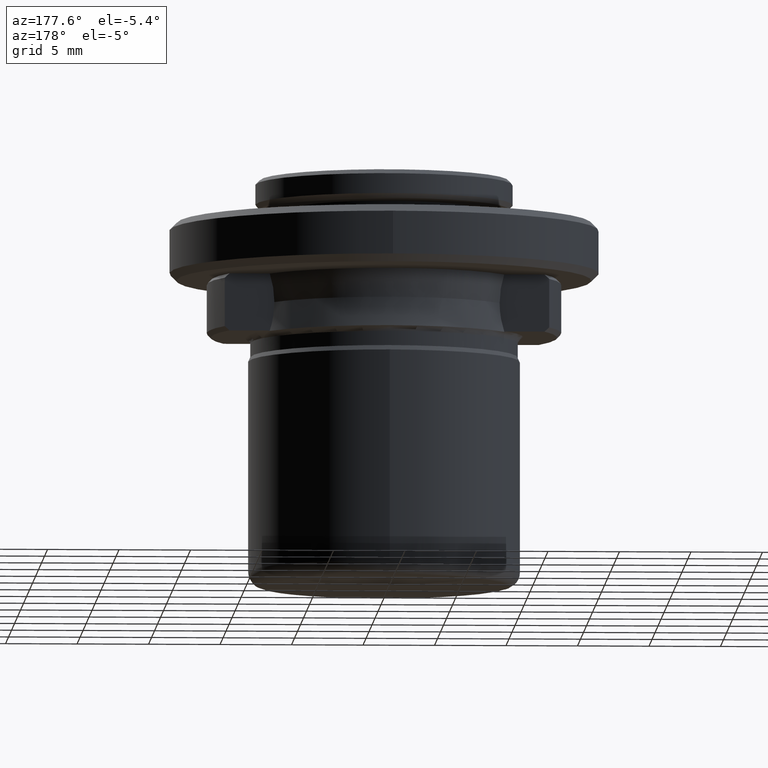
[diagram: clean part render]
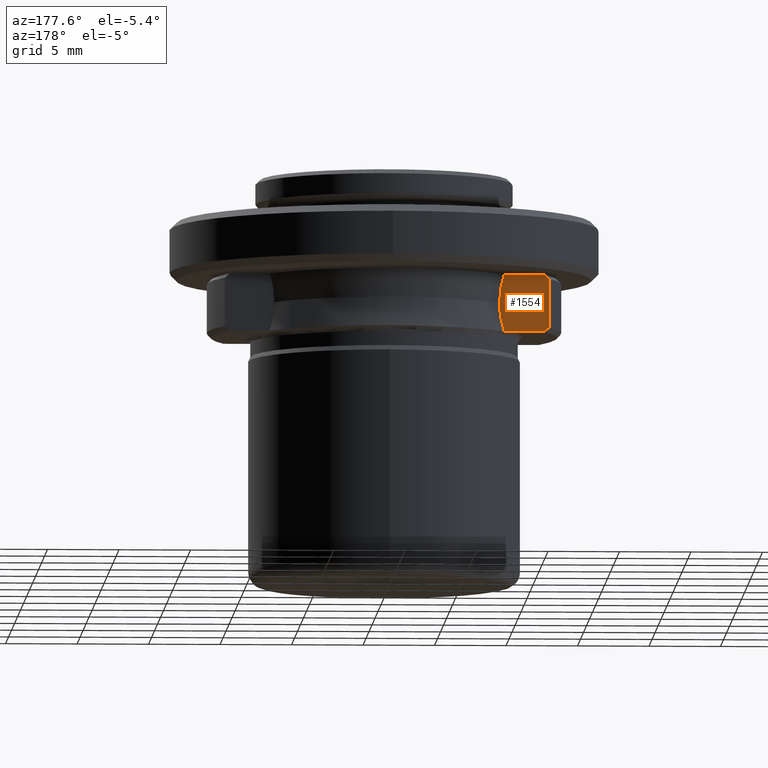
[diagram: same view with one face highlighted and labeled with its STEP entity id]
A machine part, auxiliary view. The second image highlights one B-rep face of the part: STEP entity #1554.
In plain terms, the highlighted planar face has unit normal (0, -1, 0).
Its self-contained STEP definition (entity closure, byte-faithful):
#1 = VERTEX_POINT ( 'NONE', #232 ) ;
#32 = CARTESIAN_POINT ( 'NONE',  ( -7.987554438100409500, 5.000000000000000000, 8.103832765032985100 ) ) ;
#40 = CARTESIAN_POINT ( 'NONE',  ( -8.370334521211765000, 4.999999999999999100, 4.749999999889213100 ) ) ;
#67 = CARTESIAN_POINT ( 'NONE',  ( -11.34724636062125900, 5.000000002381489700, 5.049999999695453200 ) ) ;
#115 = DIRECTION ( 'NONE',  ( -1.000000000000000000, -0.0000000000000000000, -0.0000000000000000000 ) ) ;
#120 = CARTESIAN_POINT ( 'NONE',  ( -11.34724635990468900, 5.000000004762981100, 6.750000000000000900 ) ) ;
#171 = CARTESIAN_POINT ( 'NONE',  ( -7.877112416672511100, 4.999999997048597300, 6.749999999319589600 ) ) ;
#215 = CARTESIAN_POINT ( 'NONE',  ( 0.0000000000000000000, 5.000000006628000400, 8.750000000000000000 ) ) ;
#224 = VERTEX_POINT ( 'NONE', #255 ) ;
#226 = CARTESIAN_POINT ( 'NONE',  ( -11.23782482277525400, 5.000000000000000000, 8.550131706688427300 ) ) ;
#232 = CARTESIAN_POINT ( 'NONE',  ( -8.205382973227298000, 5.000000000000000900, 4.724235039559845400 ) ) ;
#234 = ORIENTED_EDGE ( 'NONE', *, *, #259, .T. ) ;
#236 = EDGE_CURVE ( 'NONE', #486, #224, #714, .T. ) ;
#241 = ORIENTED_EDGE ( 'NONE', *, *, #774, .F. ) ;
#252 = EDGE_CURVE ( 'NONE', #605, #224, #1472, .T. ) ;
#255 = CARTESIAN_POINT ( 'NONE',  ( -11.01862060325745700, 4.999999999999999100, 4.749999999939245900 ) ) ;
#259 = EDGE_CURVE ( 'NONE', #810, #1780, #1401, .T. ) ;
#321 = CARTESIAN_POINT ( 'NONE',  ( -7.877112416672511100, 4.999999997048597300, 6.749999999319589600 ) ) ;
#325 = CARTESIAN_POINT ( 'NONE',  ( -7.877112416672511100, 4.999999997048597300, 6.749999999319589600 ) ) ;
#358 = VERTEX_POINT ( 'NONE', #1141 ) ;
#377 = EDGE_CURVE ( 'NONE', #1780, #420, #1736, .T. ) ;
#420 = VERTEX_POINT ( 'NONE', #325 ) ;
#445 = EDGE_CURVE ( 'NONE', #486, #1, #661, .T. ) ;
#448 = CARTESIAN_POINT ( 'NONE',  ( -8.196975812969103700, 5.000000000442648600, 8.750000000509832200 ) ) ;
#453 = CARTESIAN_POINT ( 'NONE',  ( -8.314009201291112200, 5.000000001154024400, 4.749999998633676900 ) ) ;
#470 = ORIENTED_EDGE ( 'NONE', *, *, #252, .F. ) ;
#486 = VERTEX_POINT ( 'NONE', #40 ) ;
#581 = EDGE_CURVE ( 'NONE', #605, #358, #939, .T. ) ;
#598 = ORIENTED_EDGE ( 'NONE', *, *, #377, .T. ) ;
#605 = VERTEX_POINT ( 'NONE', #67 ) ;
#647 = CARTESIAN_POINT ( 'NONE',  ( -11.34724636062125900, 5.000000002381489700, 5.049999999695453200 ) ) ;
#652 = CARTESIAN_POINT ( 'NONE',  ( -11.01862060325745700, 4.999999999999999100, 4.749999999939245900 ) ) ;
#661 = B_SPLINE_CURVE_WITH_KNOTS ( 'NONE', 3,
 ( #1035, #453, #750, #1687 ),
 .UNSPECIFIED., .F., .F.,
 ( 4, 4 ),
 ( 0.0000000000000000000, 0.0001669516244480452800 ),
 .UNSPECIFIED. ) ;
#705 = PLANE ( 'NONE',  #1546 ) ;
#714 = LINE ( 'NONE', #1368, #1089 ) ;
#750 = CARTESIAN_POINT ( 'NONE',  ( -8.259008784567335200, 5.000000000000000000, 4.741517755171558200 ) ) ;
#774 = EDGE_CURVE ( 'NONE', #810, #358, #1058, .T. ) ;
#810 = VERTEX_POINT ( 'NONE', #1075 ) ;
#840 = ORIENTED_EDGE ( 'NONE', *, *, #581, .T. ) ;
#845 = DIRECTION ( 'NONE',  ( 0.0000000000000000000, 0.0000000000000000000, -1.000000000000000000 ) ) ;
#887 = CARTESIAN_POINT ( 'NONE',  ( -8.205382973227298000, 5.000000000000000900, 4.724235039559845400 ) ) ;
#906 = VECTOR ( 'NONE', #1099, 1000.000000000000000 ) ;
#927 = DIRECTION ( 'NONE',  ( 1.000000000000000000, 0.0000000000000000000, 0.0000000000000000000 ) ) ;
#939 = LINE ( 'NONE', #120, #906 ) ;
#961 = CARTESIAN_POINT ( 'NONE',  ( -11.34724636200000000, 5.000000000000000000, 8.750000000000000000 ) ) ;
#1017 = CARTESIAN_POINT ( 'NONE',  ( -7.877112415001547200, 5.000000000000000000, 7.429352586293858500 ) ) ;
#1035 = CARTESIAN_POINT ( 'NONE',  ( -8.370334521211765000, 4.999999999999999100, 4.749999999889213100 ) ) ;
#1057 = ORIENTED_EDGE ( 'NONE', *, *, #236, .T. ) ;
#1058 = B_SPLINE_CURVE_WITH_KNOTS ( 'NONE', 3,
 ( #1738, #1073, #226, #1193 ),
 .UNSPECIFIED., .F., .F.,
 ( 4, 4 ),
 ( 0.0000000000000000000, 0.0004449661644516557200 ),
 .UNSPECIFIED. ) ;
#1073 = CARTESIAN_POINT ( 'NONE',  ( -11.12828599798885600, 5.000000000000000000, 8.650135423376600100 ) ) ;
#1075 = CARTESIAN_POINT ( 'NONE',  ( -11.01862060233275300, 5.000000003314000600, 8.749999999533397200 ) ) ;
#1089 = VECTOR ( 'NONE', #115, 1000.000000000000000 ) ;
#1091 = EDGE_LOOP ( 'NONE', ( #234, #598, #1309, #1237, #1057, #470, #840, #241 ) ) ;
#1099 = DIRECTION ( 'NONE',  ( 0.0000000000000000000, 0.0000000000000000000, 1.000000000000000000 ) ) ;
#1103 = DIRECTION ( 'NONE',  ( 0.0000000000000000000, -1.000000000000000000, 0.0000000000000000000 ) ) ;
#1141 = CARTESIAN_POINT ( 'NONE',  ( -11.34724636108874700, 5.000000002381489700, 8.449999999876746800 ) ) ;
#1151 = CARTESIAN_POINT ( 'NONE',  ( -7.877112415290540100, 5.000000000000000000, 6.061556053650237500 ) ) ;
#1193 = CARTESIAN_POINT ( 'NONE',  ( -11.34724636108874700, 5.000000002381489700, 8.449999999876746800 ) ) ;
#1237 = ORIENTED_EDGE ( 'NONE', *, *, #445, .F. ) ;
#1309 = ORIENTED_EDGE ( 'NONE', *, *, #1772, .F. ) ;
#1368 = CARTESIAN_POINT ( 'NONE',  ( -10.23516726099999900, 5.000000000000000000, 4.750000000000000000 ) ) ;
#1401 = LINE ( 'NONE', #215, #1719 ) ;
#1416 = B_SPLINE_CURVE_WITH_KNOTS ( 'NONE', 3,
 ( #887, #1423, #1151, #321 ),
 .UNSPECIFIED., .F., .F.,
 ( 4, 4 ),
 ( 1.213076539937994500E-013, 0.002059031618340729500 ),
 .UNSPECIFIED. ) ;
#1423 = CARTESIAN_POINT ( 'NONE',  ( -7.990552239294795600, 4.999999999999997300, 5.378193889154550400 ) ) ;
#1429 = CARTESIAN_POINT ( 'NONE',  ( -8.196975812969103700, 5.000000000442648600, 8.750000000509832200 ) ) ;
#1458 = CARTESIAN_POINT ( 'NONE',  ( -11.23782482176562400, 5.000000000000000000, 4.949868292389001400 ) ) ;
#1466 = CARTESIAN_POINT ( 'NONE',  ( -11.12828599690503000, 5.000000000000000000, 4.849864575634641500 ) ) ;
#1472 = B_SPLINE_CURVE_WITH_KNOTS ( 'NONE', 3,
 ( #647, #1458, #1466, #652 ),
 .UNSPECIFIED., .F., .F.,
 ( 4, 4 ),
 ( 3.238883885890238900E-013, 0.0004449661656181250400 ),
 .UNSPECIFIED. ) ;
#1546 = AXIS2_PLACEMENT_3D ( 'NONE', #961, #1103, #845 ) ;
#1554 = ADVANCED_FACE ( 'NONE', ( #1645 ), #705, .F. ) ;
#1645 = FACE_OUTER_BOUND ( 'NONE', #1091, .T. ) ;
#1687 = CARTESIAN_POINT ( 'NONE',  ( -8.205382973227298000, 5.000000000000000900, 4.724235039559845400 ) ) ;
#1719 = VECTOR ( 'NONE', #927, 1000.000000000000000 ) ;
#1736 = B_SPLINE_CURVE_WITH_KNOTS ( 'NONE', 3,
 ( #448, #32, #1017, #171 ),
 .UNSPECIFIED., .F., .F.,
 ( 4, 4 ),
 ( 5.980985295301940700E-013, 0.002031991267083052600 ),
 .UNSPECIFIED. ) ;
#1738 = CARTESIAN_POINT ( 'NONE',  ( -11.01862060233275300, 5.000000003314000600, 8.749999999533397200 ) ) ;
#1772 = EDGE_CURVE ( 'NONE', #1, #420, #1416, .T. ) ;
#1780 = VERTEX_POINT ( 'NONE', #1429 ) ;